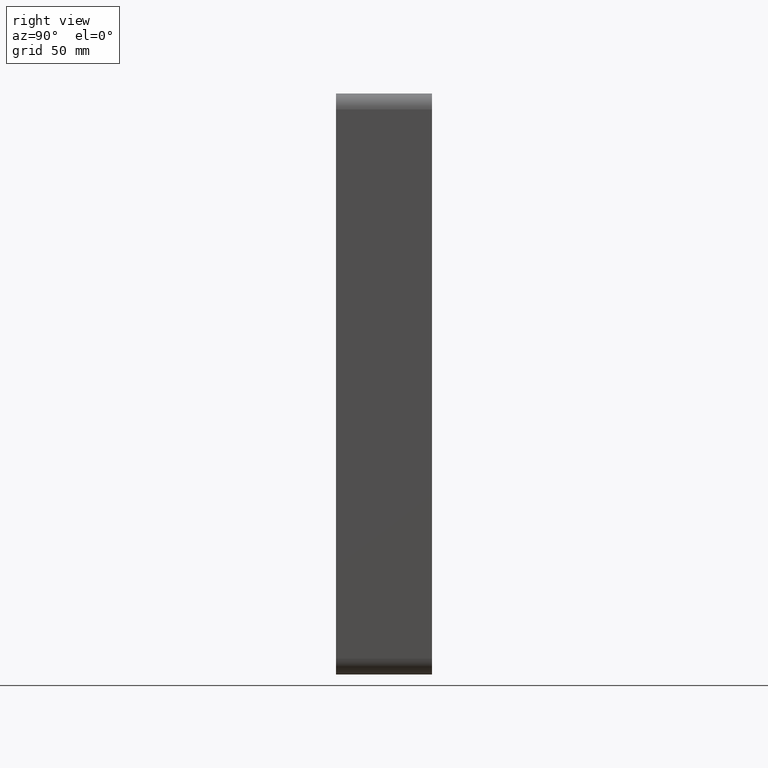
[diagram: clean part render]
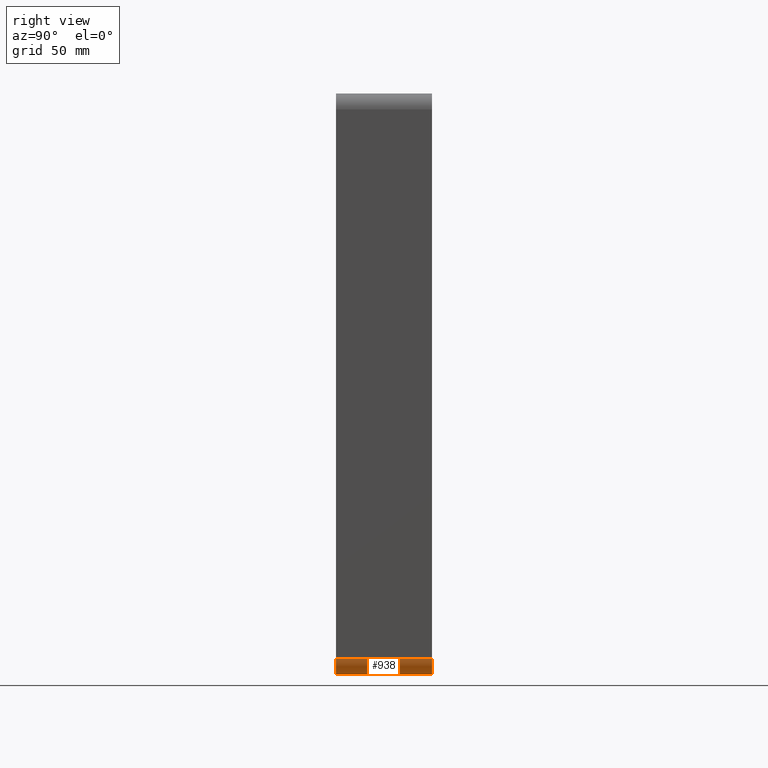
[diagram: same view with one face highlighted and labeled with its STEP entity id]
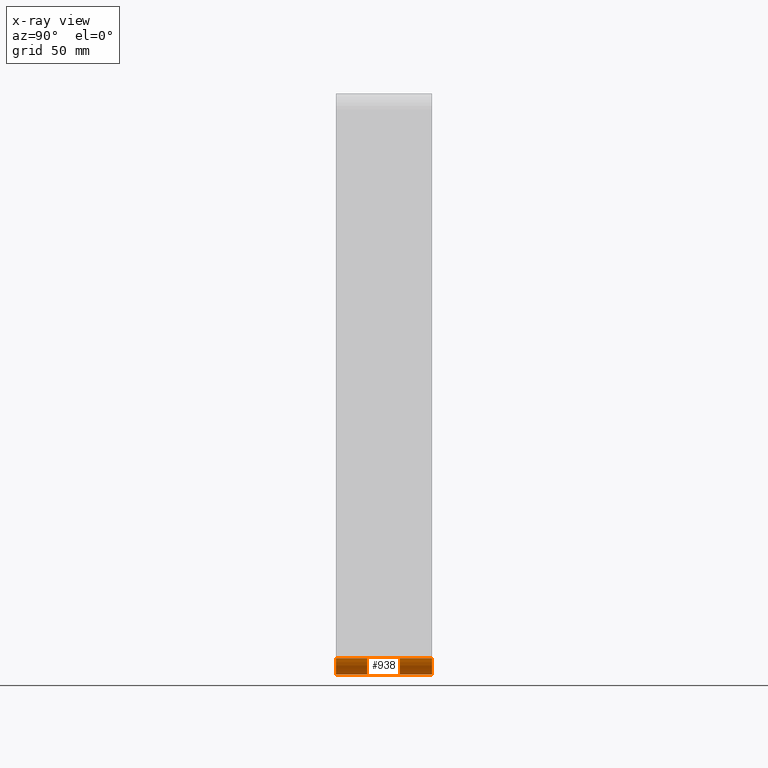
[diagram: x-ray of the same camera — body ghosted, the highlighted face saturated]
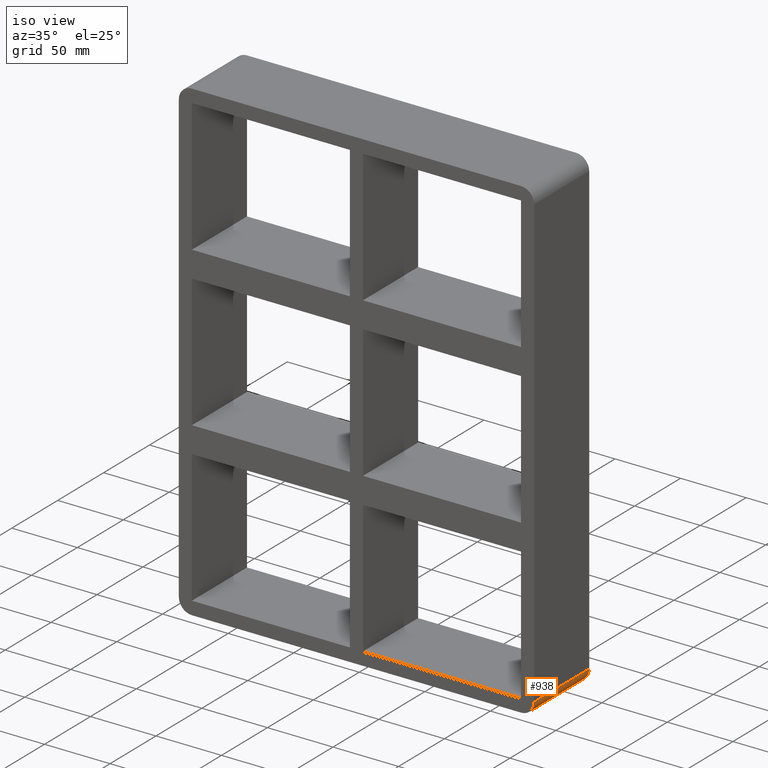
[diagram: same view with one face highlighted and labeled with its STEP entity id]
A machine part, right view. The second image highlights one B-rep face of the part: STEP entity #938.
The next image is the same camera in x-ray: the body ghosted, the highlighted face saturated — about 0% of this face is hidden behind the body in this view.
A second angle (iso view) of the same face is appended — the face is thin or edge-on in the first view.
In plain terms, the highlighted cylindrical surface (edge-blend (fillet) strip) has radius 10 mm, axis along (0, 1, 0).
Its self-contained STEP definition (entity closure, byte-faithful):
#614=CARTESIAN_POINT('',(125.50000000000004,57.0,-181.50000000000003));
#615=VERTEX_POINT('',#614);
#616=CARTESIAN_POINT('',(135.50000000000006,57.0,-171.50000000000003));
#617=VERTEX_POINT('',#616);
#618=CARTESIAN_POINT('',(125.50000000000004,57.0,-171.50000000000003));
#619=DIRECTION('',(0.0,-1.0,0.0));
#620=DIRECTION('',(0.707106781186547,0.0,-0.707106781186547));
#621=AXIS2_PLACEMENT_3D('',#618,#619,#620);
#622=CIRCLE('',#621,9.999999999999998);
#623=EDGE_CURVE('',#615,#617,#622,.T.);
#907=CARTESIAN_POINT('',(125.50000000000004,0.0,-171.50000000000003));
#908=DIRECTION('',(0.0,1.0,0.0));
#909=DIRECTION('',(0.707106781186547,0.0,-0.707106781186547));
#910=AXIS2_PLACEMENT_3D('',#907,#908,#909);
#911=CYLINDRICAL_SURFACE('',#910,10.0);
#912=ORIENTED_EDGE('',*,*,#623,.T.);
#913=CARTESIAN_POINT('',(135.50000000000006,-3.0,-171.50000000000003));
#914=VERTEX_POINT('',#913);
#915=CARTESIAN_POINT('',(135.50000000000006,57.0,-171.50000000000003));
#916=DIRECTION('',(0.0,-1.0,0.0));
#917=VECTOR('',#916,60.0);
#918=LINE('',#915,#917);
#919=EDGE_CURVE('',#617,#914,#918,.T.);
#920=ORIENTED_EDGE('',*,*,#919,.T.);
#921=CARTESIAN_POINT('',(125.50000000000004,-3.0,-181.50000000000003));
#922=VERTEX_POINT('',#921);
#923=CARTESIAN_POINT('',(125.50000000000004,-3.0,-171.50000000000003));
#924=DIRECTION('',(0.0,1.0,0.0));
#925=DIRECTION('',(0.707106781186547,0.0,-0.707106781186547));
#926=AXIS2_PLACEMENT_3D('',#923,#924,#925);
#927=CIRCLE('',#926,9.999999999999998);
#928=EDGE_CURVE('',#914,#922,#927,.T.);
#929=ORIENTED_EDGE('',*,*,#928,.T.);
#930=CARTESIAN_POINT('',(125.50000000000004,-3.0,-181.50000000000003));
#931=DIRECTION('',(0.0,1.0,0.0));
#932=VECTOR('',#931,60.0);
#933=LINE('',#930,#932);
#934=EDGE_CURVE('',#922,#615,#933,.T.);
#935=ORIENTED_EDGE('',*,*,#934,.T.);
#936=EDGE_LOOP('',(#912,#920,#929,#935));
#937=FACE_OUTER_BOUND('',#936,.T.);
#938=ADVANCED_FACE('',(#937),#911,.T.);